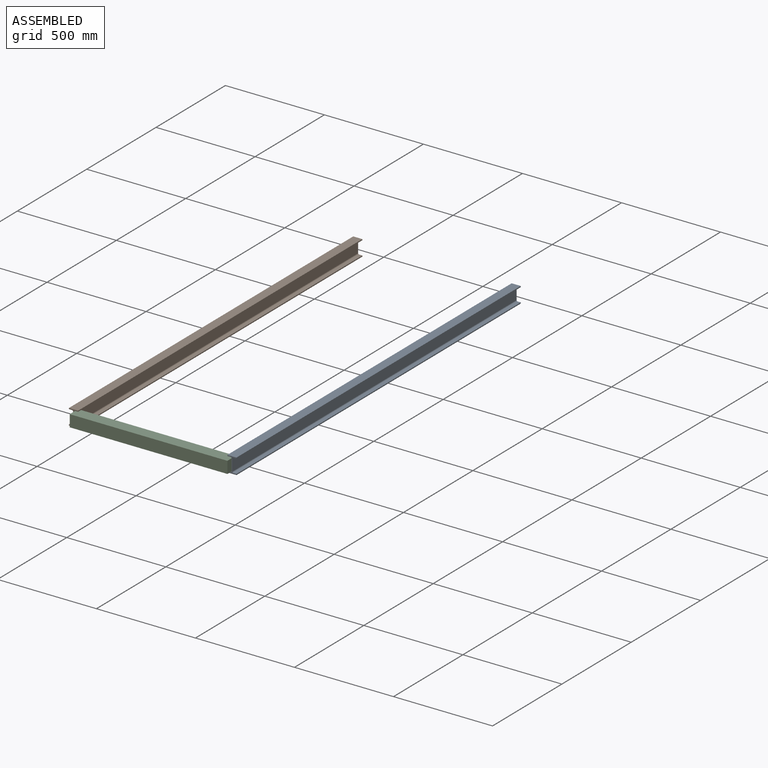
[diagram: assembled view]
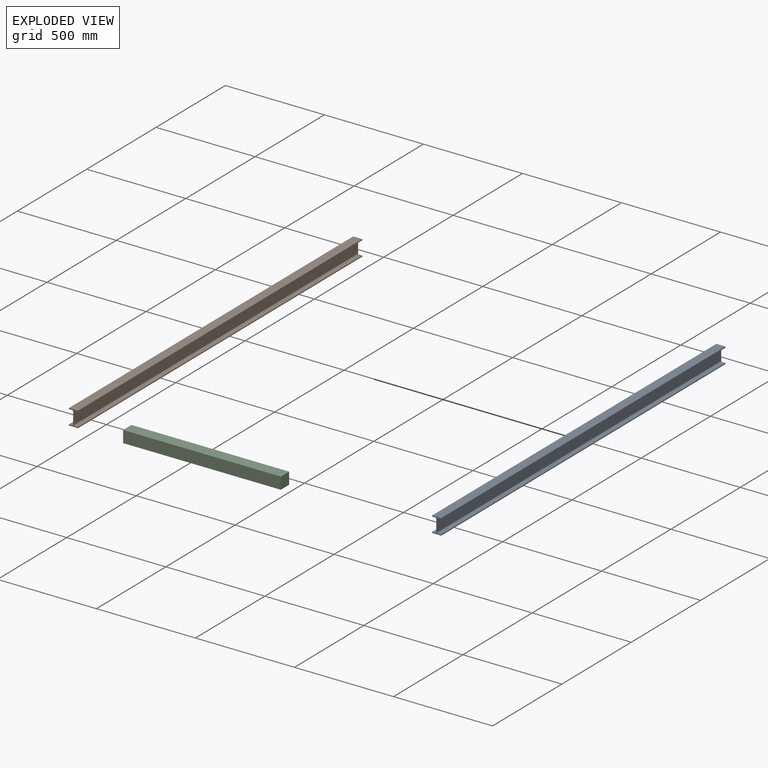
[diagram: exploded view]
GUIDED TOUR — MATED ASSEMBLY (Onshape document 580cd5fdbf1dd410fe13c1be, AutoMate assembly 580cd5fdbf1dd410fe13c1be_6c21c9a455b0790a01e65d96_9be327c0105fe656dfc19e36_default)

This assembly has 3 components, labeled P0..P2 below (a component is one placed occurrence of a part; the same part can appear more than once), held together by 2 mates. A mate is a constraint between two components; its type names the relative motion it leaves free:
  FASTENED — locks the two components together rigidly (no relative motion).
Axis/direction vectors are unit vectors and 'through' points are millimeter coordinates, both in the assembly's world frame.

MATES
  1. FASTENED "Fastened 2": P2 <-> P0, direction (1.000, 0.000, 0.000) through (241.32, -1156.21, -405.81) mm
  2. FASTENED "dummy800 vs links": P2 <-> P1, direction (-1.000, 0.000, 0.000) through (-554.88, -1156.21, -405.81) mm

ASSEMBLY ORDER
  1. P1 — the base component [order verified]
  2. P0 [order verified]
  3. P2 [order verified]
Order-tag legend:
  [order verified] — this step's position reverses a verified removal order: the component was checked to insert without passing through the ones already placed.

Of the 3 components, 3 carry the full construction recipe — the FeatureScript program that regenerates the part's solid from scratch; the rest are supplied as boundary geometry only.
Each toured component is shown spotlighted twice — in the assembled view, then in the exploded view, where a leader line traces a displaced component back to its assembled socket (saturated green if recipe-attached, orange if geometry-only; every other component desaturated gray) — followed by its recipe or geometry summary and the mates that hold it.
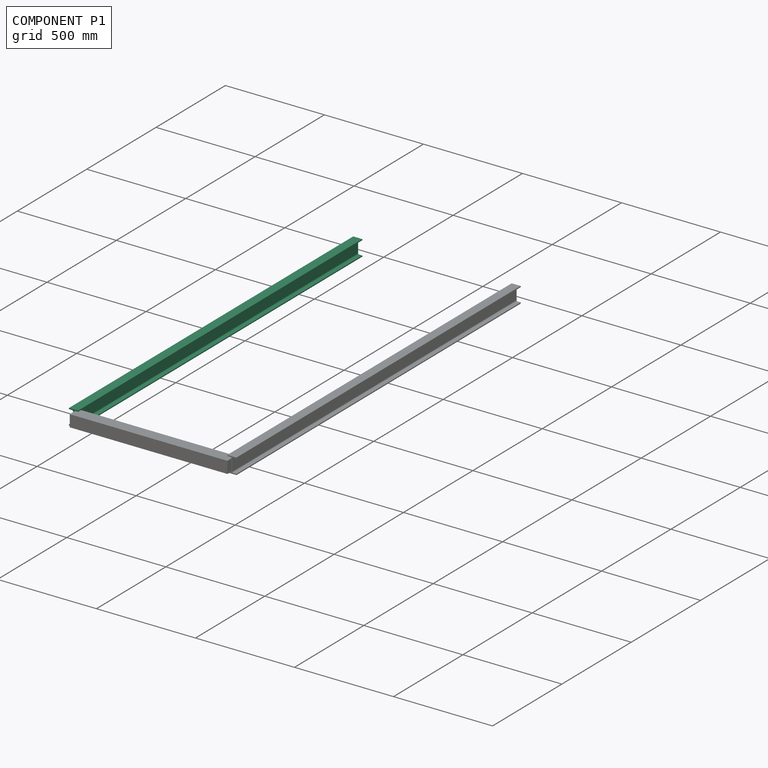
[diagram: component P1 — assembled]
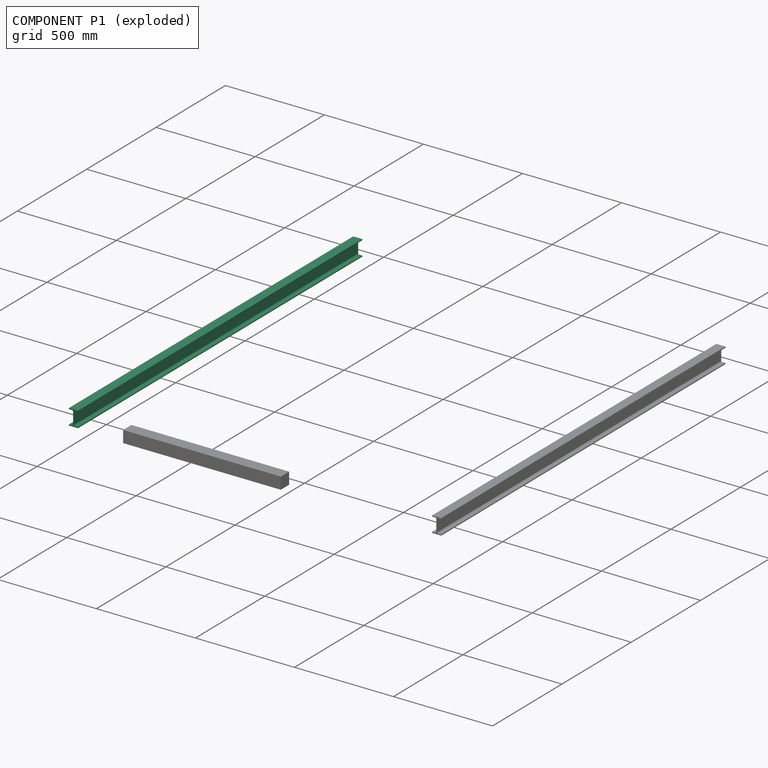
[diagram: component P1 — exploded]
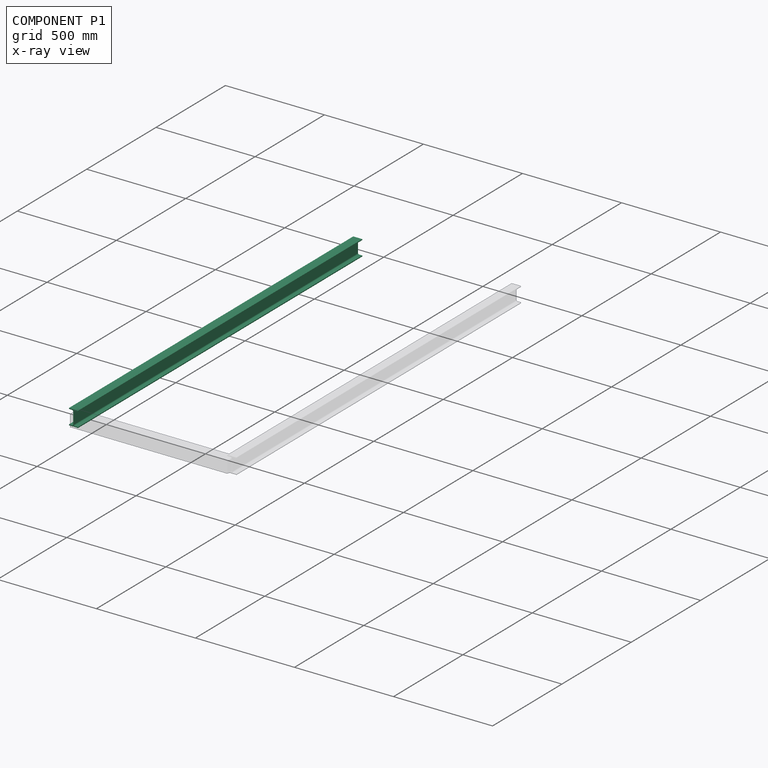
[diagram: component P1 — x-ray view]
COMPONENT P1 — same part as P0 (CADFS 00296120); its construction recipe is shown at P0.
Held by: FASTENED mate "dummy800 vs links" to P2.
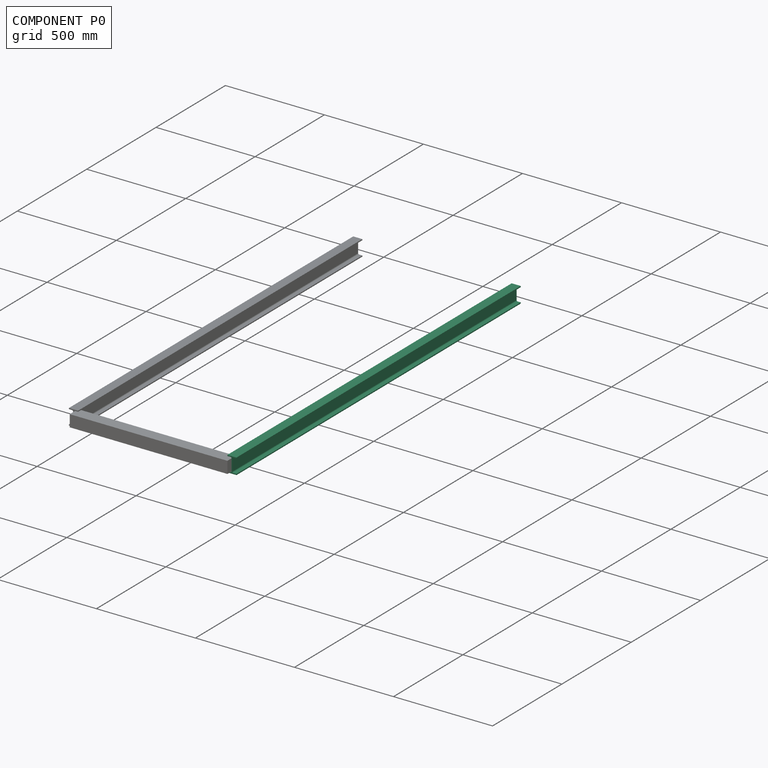
[diagram: component P0 — assembled]
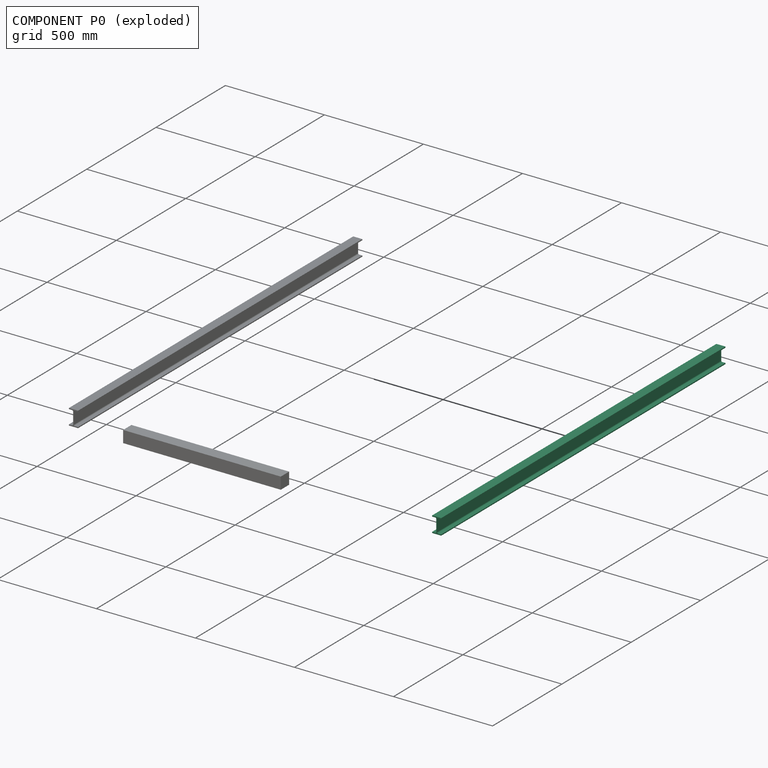
[diagram: component P0 — exploded]
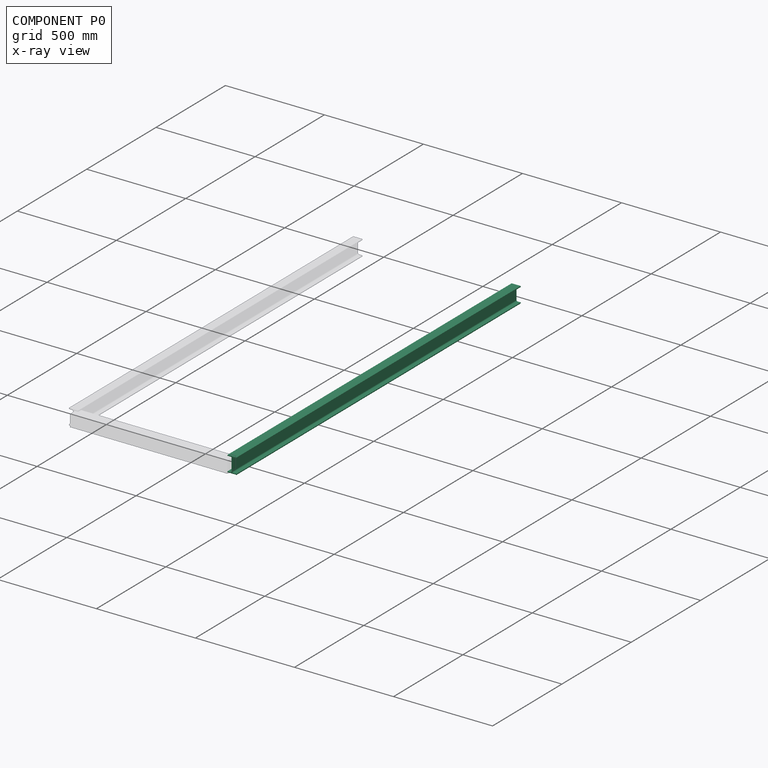
[diagram: component P0 — x-ray view]
COMPONENT P0 — recipe-attached (CADFS 00296120, mesh-verified: the recipe's output STEP matches this component's geometry to below the mesh-comparison resolution (tessellation chordal tolerance ~3.08 mm)).
Held by: FASTENED mate "Fastened 2" to P2.
Construction recipe (FeatureScript — the CAD program that rebuilds this solid; sketch coordinates are in the units given by the * unit suffixes, e.g. mm):

FeatureScript 1511;
import(path : "onshape/std/geometry.fs", version : "1511.0");
import(path : "onshape/std/common.fs", version : "1511.0");
const mm = millimeter;
const VERTEX = EntityType.VERTEX;
const EDGE = EntityType.EDGE;
const FACE = EntityType.FACE;
const BODY = EntityType.BODY;
function v(x, y){return vector(x, y);}
function OD(order){return orderDisambiguation(order);}
function OSD(set){return originalSetDisambiguation(set);}
function TD(topology){return topologyDisambiguation(topology);}
function TDD(query){return trueDependencyDisambiguation(query);}
function sQuery(a, b, c) {return sketchEntityQuery(a, b, c);}

annotation { "Feature Type Name" : "Feature", "Feature Type Description" : "" }
export const myFeature = defineFeature(function(context is Context, id is Id, definition is map)
    precondition{}
    {
        {
            var Q0;
            Q0=qCreatedBy(makeId("Front.planeOp"),FACE);
            var sketch = newSketch(context, id + "F0", { "sketchPlane" : qUnion([Q0])});
            skLineSegment(sketch, "E0.right", {"start": v(-23, 40) * mm, "end": v(-23, 34.8) * mm});
            skPoint(sketch, "E0.middle", {"position": v(0, 0) * mm});
            skLineSegment(sketch, "E1", {"start": v(-23, 34.8) * mm, "end": v(-6.9, 34.8) * mm});
            skLineSegment(sketch, "E2", {"start": v(-1.9, 29.8) * mm, "end": v(-1.9, 0) * mm});
            skPoint(sketch, "E0.top.end.orphan", {"position": v(-23, -40) * mm});
            skPoint(sketch, "E0.top.start.orphan", {"position": v(23, -40) * mm});
            skLineSegment(sketch, "E3.MirrorCS", {"start": v(-23, -40) * mm, "end": v(-23, -34.8) * mm});
            skLineSegment(sketch, "E4.MirrorCS", {"start": v(-23, -34.8) * mm, "end": v(-6.9, -34.8) * mm});
            skLineSegment(sketch, "E5.MirrorCS", {"start": v(-1.9, -29.8) * mm, "end": v(-1.9, 0) * mm});
            skPoint(sketch, "E0.bottom.start.orphan", {"position": v(23, 40) * mm});
            skLineSegment(sketch, "E6", {"start": v(-23, 40) * mm, "end": v(0, 40) * mm});
            skLineSegment(sketch, "E7", {"start": v(-23, -40) * mm, "end": v(0, -40) * mm});
            skLineSegment(sketch, "E8.MirrorCS", {"start": v(23, 40) * mm, "end": v(23, 34.8) * mm});
            skLineSegment(sketch, "E9.MirrorCS", {"start": v(23, -40) * mm, "end": v(23, -34.8) * mm});
            skLineSegment(sketch, "E10.MirrorCS", {"start": v(23, -40) * mm, "end": v(0, -40) * mm});
            skLineSegment(sketch, "E11.MirrorCS", {"start": v(1.9, -29.8) * mm, "end": v(1.9, 0) * mm});
            skLineSegment(sketch, "E12.MirrorCS", {"start": v(23, 40) * mm, "end": v(0, 40) * mm});
            skLineSegment(sketch, "E13.MirrorCS", {"start": v(23, 34.8) * mm, "end": v(6.9, 34.8) * mm});
            skLineSegment(sketch, "E14.MirrorCS", {"start": v(23, -34.8) * mm, "end": v(6.9, -34.8) * mm});
            skLineSegment(sketch, "E15.MirrorCS", {"start": v(1.9, 29.8) * mm, "end": v(1.9, 0) * mm});
            skPoint(sketch, "E16.visualSharp", {"position": v(-1.9, 34.8) * mm});
            skArc(sketch, "E16.filletArc", {"start": v(-1.9, 29.8) * mm, "mid": v(-3.36, 33.34) * mm, "end": v(-6.9, 34.8) * mm});
            skPoint(sketch, "E17.visualSharp", {"position": v(1.9, 34.8) * mm});
            skArc(sketch, "E17.filletArc", {"start": v(6.9, 34.8) * mm, "mid": v(3.36, 33.34) * mm, "end": v(1.9, 29.8) * mm});
            skPoint(sketch, "E18.visualSharp", {"position": v(1.9, -34.8) * mm});
            skArc(sketch, "E18.filletArc", {"start": v(1.9, -29.8) * mm, "mid": v(3.36, -33.34) * mm, "end": v(6.9, -34.8) * mm});
            skPoint(sketch, "E19.visualSharp", {"position": v(-1.9, -34.8) * mm});
            skArc(sketch, "E19.filletArc", {"start": v(-6.9, -34.8) * mm, "mid": v(-3.36, -33.34) * mm, "end": v(-1.9, -29.8) * mm});
            skSolve(sketch);
        }
        {
            var Q0;
            Q0 = qSketchRegion(id + "F0", true);
            extrude(context, id + "F1", {"entities" : qUnion([Q0]), "depth" : 2050 * mm});
        }
    });
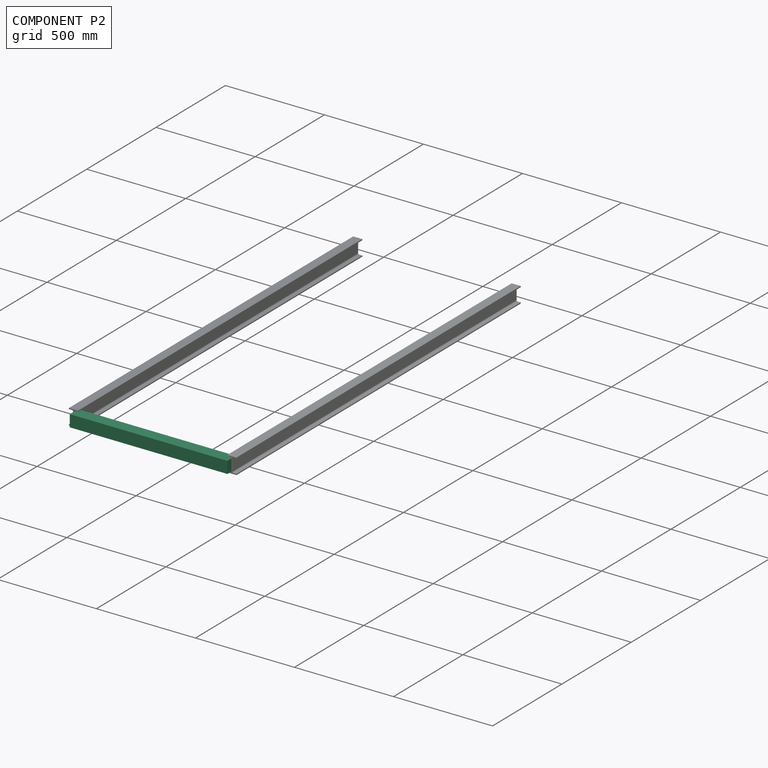
[diagram: component P2 — assembled]
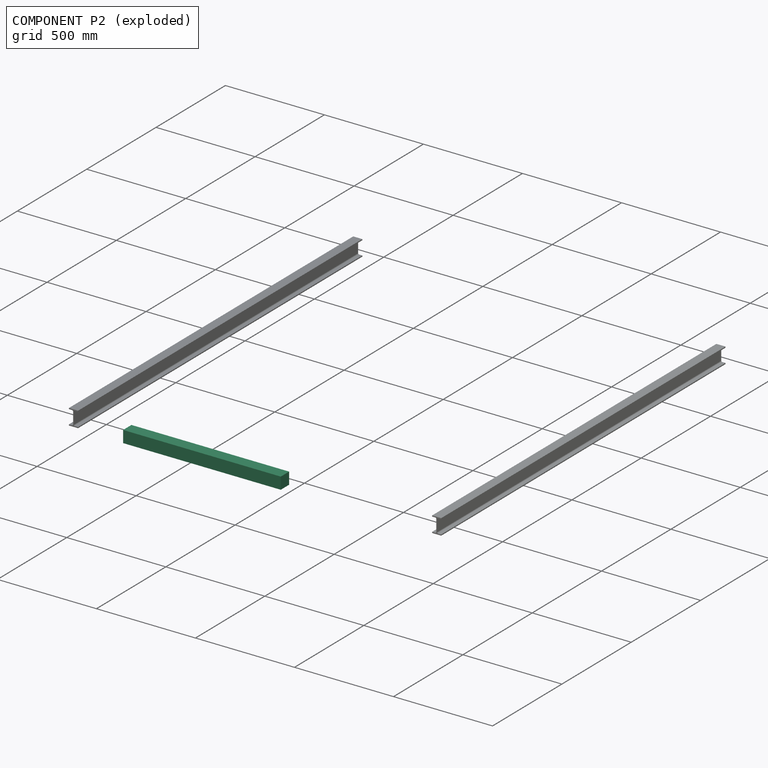
[diagram: component P2 — exploded]
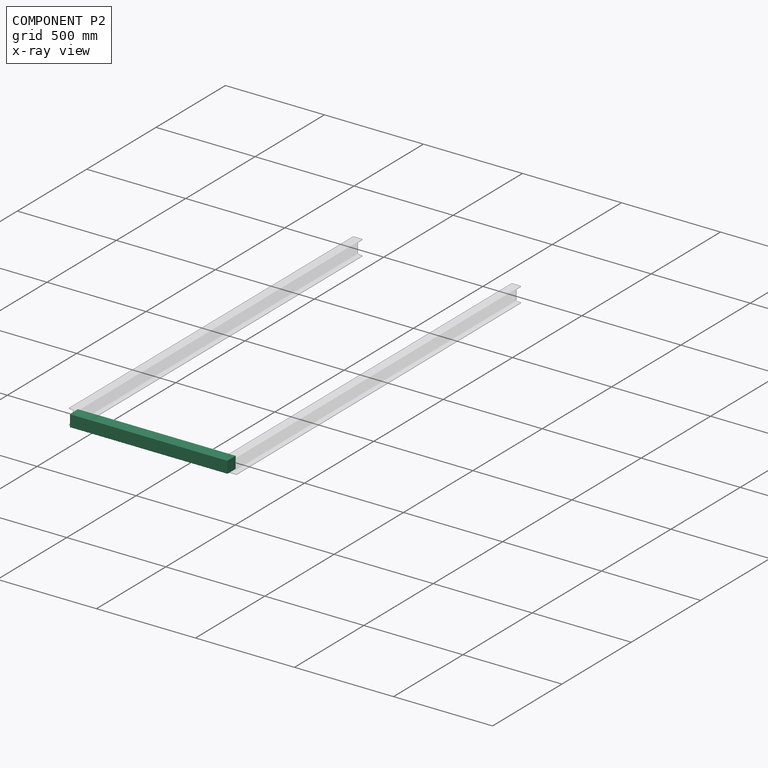
[diagram: component P2 — x-ray view]
COMPONENT P2 — recipe-attached (CADFS 00296143, mesh-verified: the recipe's output STEP matches this component's geometry to below the mesh-comparison resolution (tessellation chordal tolerance ~1.2 mm)).
Held by: FASTENED mate "Fastened 2" to P0; FASTENED mate "dummy800 vs links" to P1.
Construction recipe (FeatureScript — the CAD program that rebuilds this solid; sketch coordinates are in the units given by the * unit suffixes, e.g. mm):

FeatureScript 1511;
import(path : "onshape/std/geometry.fs", version : "1511.0");
import(path : "onshape/std/common.fs", version : "1511.0");
const mm = millimeter;
const VERTEX = EntityType.VERTEX;
const EDGE = EntityType.EDGE;
const FACE = EntityType.FACE;
const BODY = EntityType.BODY;
function v(x, y){return vector(x, y);}
function OD(order){return orderDisambiguation(order);}
function OSD(set){return originalSetDisambiguation(set);}
function TD(topology){return topologyDisambiguation(topology);}
function TDD(query){return trueDependencyDisambiguation(query);}
function sQuery(a, b, c) {return sketchEntityQuery(a, b, c);}

annotation { "Feature Type Name" : "Feature", "Feature Type Description" : "" }
export const myFeature = defineFeature(function(context is Context, id is Id, definition is map)
    precondition{}
    {
        {
            var Q0;
            Q0=qCreatedBy(makeId("Front.planeOp"),FACE);
            var sketch = newSketch(context, id + "F0", { "sketchPlane" : qUnion([Q0])});
            skLineSegment(sketch, "E0.bottom", {"start": v(30, 30) * mm, "end": v(-30, 30) * mm});
            skLineSegment(sketch, "E0.top", {"start": v(30, -30) * mm, "end": v(-30, -30) * mm});
            skLineSegment(sketch, "E0.left", {"start": v(30, 30) * mm, "end": v(30, -30) * mm});
            skLineSegment(sketch, "E0.right", {"start": v(-30, 30) * mm, "end": v(-30, -30) * mm});
            skPoint(sketch, "E0.middle", {"position": v(0, 0) * mm});
            skSolve(sketch);
        }
        {
            var Q0;
            Q0 = qSketchRegion(id + "F0", true);
            extrude(context, id + "F1", {"entities" : qUnion([Q0]), "depth" : 796.2 * mm});
        }
        {
            var Q0;
            Q0=makeQuery(id+"F1.opExtrude","CAP_FACE",FACE,{"disambiguationData":[OSD([sQuery(id+"F0.wireOp",EDGE,"E0.bottom"),sQuery(id+"F0.wireOp",EDGE,"E0.top"),sQuery(id+"F0.wireOp",EDGE,"E0.left"),sQuery(id+"F0.wireOp",EDGE,"E0.right")])],"isStart":false});
            var sketch = newSketch(context, id + "F2", { "sketchPlane" : qUnion([Q0])});
            skLineSegment(sketch, "E1.bottom", {"start": v(-30, 30) * mm, "end": v(30, 30) * mm});
            skLineSegment(sketch, "E1.top", {"start": v(-30, -30) * mm, "end": v(30, -30) * mm});
            skLineSegment(sketch, "E1.left", {"start": v(-30, 30) * mm, "end": v(-30, -30) * mm});
            skLineSegment(sketch, "E1.right", {"start": v(30, 30) * mm, "end": v(30, -30) * mm});
            skSolve(sketch);
        }
        {
            var Q0;
            Q0 = qSketchRegion(id + "F2", true);
            extrude(context, id + "F3", {"entities" : qUnion([Q0]), "operationType" : NewBodyOperationType.ADD, "oppositeDirection" : true, "depth" : 6 * mm});
        }
        {
            var Q0;
            Q0=makeQuery(id+"F1.opExtrude","CAP_FACE",FACE,{"disambiguationData":[OSD([sQuery(id+"F0.wireOp",EDGE,"E0.bottom"),sQuery(id+"F0.wireOp",EDGE,"E0.top"),sQuery(id+"F0.wireOp",EDGE,"E0.left"),sQuery(id+"F0.wireOp",EDGE,"E0.right")])],"isStart":false});
            var sketch = newSketch(context, id + "F4", { "sketchPlane" : qUnion([Q0])});
            skLineSegment(sketch, "E2", {"start": v(0, 30) * mm, "end": v(0, 15) * mm, "construction": true});
            skPoint(sketch, "E2.endSnap0", {"position": v(0, 30) * mm});
            skLineSegment(sketch, "E3", {"start": v(0, -30) * mm, "end": v(0, -15) * mm, "construction": true});
            skPoint(sketch, "E3.endSnap0", {"position": v(0, -30) * mm});
            skCircle(sketch, "E4", {"center": v(0, 15) * mm, "radius": 3.4 * mm});
            skCircle(sketch, "E5", {"center": v(0, -15) * mm, "radius": 3.4 * mm});
            skSolve(sketch);
        }
        {
            var Q0;
            Q0=makeQuery(id+"F4.imprint","IMPRINT",FACE,{"disambiguationData":[TD([[makeQuery(id+"F4.imprint","IMPRINT",EDGE,{"derivedFrom":sQuery(id+"F4.wireOp",EDGE,"E4")}),1.0]])]});
            var Q1;
            Q1=makeQuery(id+"F4.imprint","IMPRINT",FACE,{"disambiguationData":[TD([[makeQuery(id+"F4.imprint","IMPRINT",EDGE,{"derivedFrom":sQuery(id+"F4.wireOp",EDGE,"E5")}),1.0]])]});
            extrude(context, id + "F5", {"entities" : qUnion([Q0, Q1]), "operationType" : NewBodyOperationType.REMOVE, "endBound" : BoundingType.THROUGH_ALL, "oppositeDirection" : true, "depth" : 25 * mm});
        }
        {
            var Q0;
            Q0=makeQuery(id+"F1.opExtrude","CAP_FACE",FACE,{"disambiguationData":[OSD([sQuery(id+"F0.wireOp",EDGE,"E0.bottom"),sQuery(id+"F0.wireOp",EDGE,"E0.top"),sQuery(id+"F0.wireOp",EDGE,"E0.left"),sQuery(id+"F0.wireOp",EDGE,"E0.right")])],"isStart":true});
            var sketch = newSketch(context, id + "F6", { "sketchPlane" : qUnion([Q0])});
            skLineSegment(sketch, "E6.bottom", {"start": v(-30, 30) * mm, "end": v(30, 30) * mm});
            skLineSegment(sketch, "E6.top", {"start": v(-30, -30) * mm, "end": v(30, -30) * mm});
            skLineSegment(sketch, "E6.left", {"start": v(-30, 30) * mm, "end": v(-30, -30) * mm});
            skLineSegment(sketch, "E6.right", {"start": v(30, 30) * mm, "end": v(30, -30) * mm});
            skSolve(sketch);
        }
        {
            var Q0;
            Q0 = qSketchRegion(id + "F6", true);
            extrude(context, id + "F7", {"entities" : qUnion([Q0]), "operationType" : NewBodyOperationType.ADD, "oppositeDirection" : true, "depth" : 6 * mm});
        }
    });
PROVENANCE & LICENSES
Assembly (occurrences, transforms, mates, per-part STEP geometry): AutoMate dataset, Zenodo record 7776208, CC0.
Construction recipes: CADFS (HuggingFace VladPyatov/CADFS, CC-BY-4.0, layered over the ABC dataset), FeatureScript reconstruction programs keyed by ABC model id.
Join: ABC meta listings map ABC model id -> Onshape documentId; within a shared document, parts are matched by geometric signature (bounding-box dims + volume at 0.1% relative tolerance, exact B-rep face/solid counts).
Verification: 3 of this assembly's 3 components carry a recipe attachment, and every attachment is mesh-verified: the CADFS STEP and the AutoMate member STEP were compared as meshes in their shared local frame (symmetric sampled-point-to-mesh distance); worst across the 3 attachments: below the mesh-comparison resolution (tessellation chordal tolerance ~3.08 mm) on a 2052 mm part.
Renders: orthographic iso camera (az 35 / el 25); the floor grid conveys scale (grid pitch printed in each image; no ruler). In the exploded view each component is displaced by its stored offset vector: the offsets alone carry the explosion direction (mate normal/axis signs are not orientation cues and do not encode it), and separation distances are assigned per mate-chain, not proportionally to assembly-order depth.
